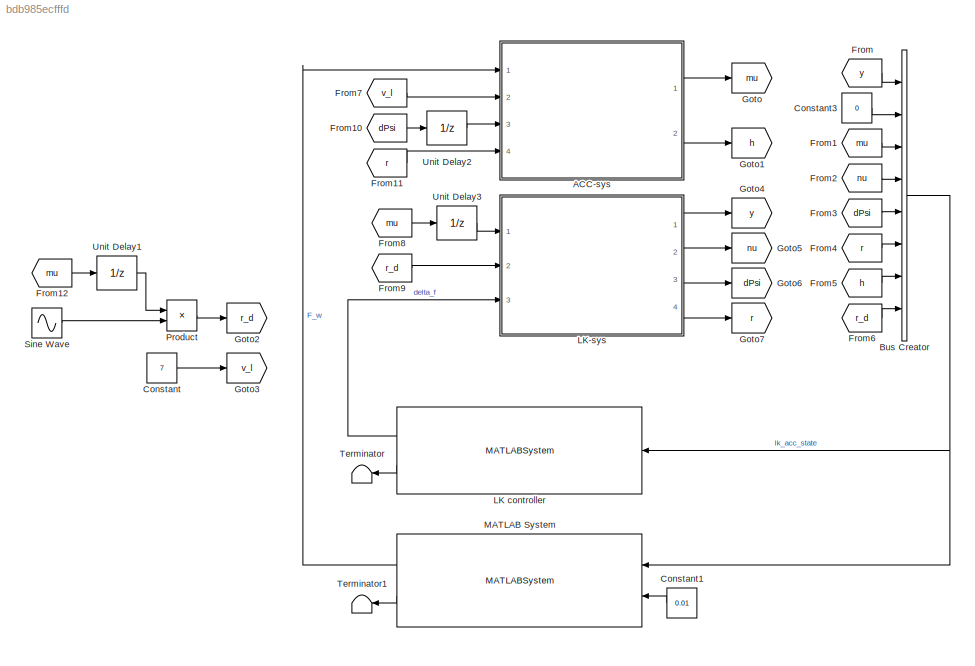
MODEL slx_bdb985ecfffd
KIND model
CONFIG AbsTol = auto
CONFIG EnableMultiTasking = off
CONFIG FixedStep = 0.01
CONFIG MaxStep = auto
CONFIG MinStep = auto
CONFIG PreLoadFcn = bus_definitions
CONFIG RelTol = 1e-3
CONFIG SampleTimeConstraint = Unconstrained
CONFIG Solver = FixedStepAuto
CONFIG SolverName = FixedStepAuto
CONFIG StartTime = 0.0
CONFIG StopTime = 70
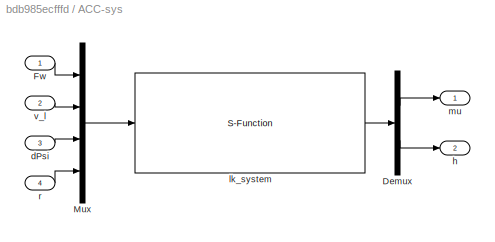
BLOCK [SubSystem] ACC-sys
  Ports = [4, 2]
  RequestExecContextInheritance = off
  Variant = off
BLOCK [Demux] ACC-sys/Demux
  DisplayOption = bar
  Outputs = 2
  Ports = [1, 2]
BLOCK [Inport] ACC-sys/Fw
  IconDisplay = Port number
BLOCK [Mux] ACC-sys/Mux
  DisplayOption = bar
  Ports = [4, 1]
BLOCK [Inport] ACC-sys/dPsi
  IconDisplay = Port number
  Port = 3
BLOCK [Outport] ACC-sys/h
  IconDisplay = Port number
  Port = 2
BLOCK [S-Function] ACC-sys/lk_system
  EnableBusSupport = off
  FunctionName = acc_system
  Parameters = [7;40]
  Ports = [1, 1]
  SFcnIsStateOwnerBlock = off
  SFunctionDeploymentMode = off
BLOCK [Outport] ACC-sys/mu
  IconDisplay = Port number
BLOCK [Inport] ACC-sys/r
  IconDisplay = Port number
  Port = 4
BLOCK [Inport] ACC-sys/v_l
  IconDisplay = Port number
  Port = 2
BLOCK [BusCreator] Bus Creator
  DisplayOption = bar
  InheritFromInputs = off
  Inputs = 8
  OutDataTypeStr = Bus: LKACCBus
  Ports = [8, 1]
BLOCK [Constant] Constant
  Value = 7
BLOCK [Constant] Constant1
  Value = 0.01
BLOCK [Constant] Constant3
  Value = 0
BLOCK [From] From
  GotoTag = y
BLOCK [From] From1
  GotoTag = mu
BLOCK [From] From10
  GotoTag = dPsi
BLOCK [From] From11
  GotoTag = r
BLOCK [From] From12
  GotoTag = mu
BLOCK [From] From2
  GotoTag = nu
BLOCK [From] From3
  GotoTag = dPsi
BLOCK [From] From4
  GotoTag = r
BLOCK [From] From5
  GotoTag = h
BLOCK [From] From6
  GotoTag = r_d
BLOCK [From] From7
  GotoTag = v_l
BLOCK [From] From8
  GotoTag = mu
BLOCK [From] From9
  GotoTag = r_d
BLOCK [Goto] Goto
  GotoTag = mu
BLOCK [Goto] Goto1
  GotoTag = h
BLOCK [Goto] Goto2
  GotoTag = r_d
BLOCK [Goto] Goto3
  GotoTag = v_l
BLOCK [Goto] Goto4
  GotoTag = y
BLOCK [Goto] Goto5
  GotoTag = nu
BLOCK [Goto] Goto6
  GotoTag = dPsi
BLOCK [Goto] Goto7
  GotoTag = r
BLOCK [MATLABSystem] LK controller
  Caf = 140000
  Car = 120000
  H_u = 4
  H_x = diag([1 0 0.25 0])
  Iz = 3270.0
  M = 1800
  MaskDisplay = disp('lk_pcis_controller');\nport_label('input',1,'lk_acc_state');\nport_label('output',1,'delta_f');\nport_label('output',2,'control_info');
  MaskType = lk_pcis_controller
  Ports = [1, 2]
  SimulateUsing = Code generation
  System = lk_pcis_controller
  f_u = 0
  f_x = [0;0;0;0]
  lf = 1.2
  lr = 1.650
  sol_opts = struct( 'DataType', 'double', 'MaxIter', 200, 'FeasibilityTol', 1e-6, 'IntegrityChecks', true )
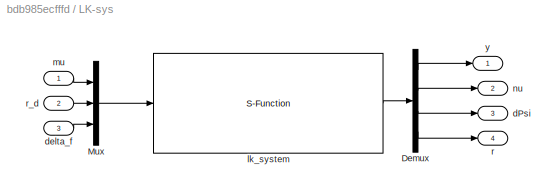
BLOCK [SubSystem] LK-sys
  Ports = [3, 4]
  RequestExecContextInheritance = off
  Variant = off
BLOCK [Demux] LK-sys/Demux
  DisplayOption = bar
  Ports = [1, 4]
BLOCK [Mux] LK-sys/Mux
  DisplayOption = bar
  Inputs = 3
  Ports = [3, 1]
BLOCK [Outport] LK-sys/dPsi
  IconDisplay = Port number
  Port = 3
BLOCK [Inport] LK-sys/delta_f
  IconDisplay = Port number
  Port = 3
BLOCK [S-Function] LK-sys/lk_system
  EnableBusSupport = off
  FunctionName = lk_system
  Parameters = [0;0;0;0]
  Ports = [1, 1]
  SFcnIsStateOwnerBlock = off
  SFunctionDeploymentMode = off
BLOCK [Inport] LK-sys/mu
  IconDisplay = Port number
BLOCK [Outport] LK-sys/nu
  IconDisplay = Port number
  Port = 2
BLOCK [Outport] LK-sys/r
  IconDisplay = Port number
  Port = 4
BLOCK [Inport] LK-sys/r_d
  IconDisplay = Port number
  Port = 2
BLOCK [Outport] LK-sys/y
  IconDisplay = Port number
BLOCK [MATLABSystem] MATLAB System
  K_i = 0
  M = 1800
  M_d = 0
  M_i = 0
  M_p = 1
  MaskDisplay = disp('acc_pcis_controller');\nport_label('input',1,'lk_acc_state');\nport_label('input',2,'dt');\nport_label('output',1,'F_w');\nport_label('output',2,'control_info');
  MaskType = acc_pcis_controller
  Ports = [2, 2]
  SimulateUsing = Code generation
  System = acc_pcis_controller
  f0bar = 74.63
  f1bar = 40.59
  sol_opts = struct( 'DataType', 'double', 'MaxIter', 200, 'FeasibilityTol', 1e-6, 'IntegrityChecks', true )
  v_des = 8
  vl = 7
BLOCK [Product] Product
  InputSameDT = off
  OutDataTypeStr = Inherit: Inherit via internal rule
  Ports = [2, 1]
  RndMeth = Floor
  SaturateOnIntegerOverflow = off
BLOCK [Sin] Sine Wave
  Amplitude = 0.03
  Frequency = pi/10
  Ports = [0, 1]
  SampleTime = 0
BLOCK [Terminator] Terminator
BLOCK [Terminator] Terminator1
BLOCK [UnitDelay] Unit Delay1
  InputProcessing = Elements as channels (sample based)
  SampleTime = -1
BLOCK [UnitDelay] Unit Delay2
  InputProcessing = Elements as channels (sample based)
  SampleTime = -1
BLOCK [UnitDelay] Unit Delay3
  InputProcessing = Elements as channels (sample based)
  SampleTime = -1
LINE ACC-sys/Demux:1 -> ACC-sys/mu:1
LINE ACC-sys/Demux:2 -> ACC-sys/h:1
LINE ACC-sys/Fw:1 -> ACC-sys/Mux:1
LINE ACC-sys/Mux:1 -> ACC-sys/lk_system:1
LINE ACC-sys/dPsi:1 -> ACC-sys/Mux:3
LINE ACC-sys/lk_system:1 -> ACC-sys/Demux:1
LINE ACC-sys/r:1 -> ACC-sys/Mux:4
LINE ACC-sys/v_l:1 -> ACC-sys/Mux:2
LINE ACC-sys:1 -> Goto:1
LINE ACC-sys:2 -> Goto1:1
NET Bus Creator:1 -> LK controller:1, MATLAB System:1
LINE Constant1:1 -> MATLAB System:2
LINE Constant3:1 -> Bus Creator:2
LINE Constant:1 -> Goto3:1
LINE From10:1 -> Unit Delay2:1
LINE From11:1 -> ACC-sys:4
LINE From12:1 -> Unit Delay1:1
LINE From1:1 -> Bus Creator:3
LINE From2:1 -> Bus Creator:4
LINE From3:1 -> Bus Creator:5
LINE From4:1 -> Bus Creator:6
LINE From5:1 -> Bus Creator:7
LINE From6:1 -> Bus Creator:8
LINE From7:1 -> ACC-sys:2
LINE From8:1 -> Unit Delay3:1
LINE From9:1 -> LK-sys:2
LINE From:1 -> Bus Creator:1
LINE LK controller:1 -> LK-sys:3
LINE LK controller:2 -> Terminator:1
LINE LK-sys/Demux:1 -> LK-sys/y:1
LINE LK-sys/Demux:2 -> LK-sys/nu:1
LINE LK-sys/Demux:3 -> LK-sys/dPsi:1
LINE LK-sys/Demux:4 -> LK-sys/r:1
LINE LK-sys/Mux:1 -> LK-sys/lk_system:1
LINE LK-sys/delta_f:1 -> LK-sys/Mux:3
LINE LK-sys/lk_system:1 -> LK-sys/Demux:1
LINE LK-sys/mu:1 -> LK-sys/Mux:1
LINE LK-sys/r_d:1 -> LK-sys/Mux:2
LINE LK-sys:1 -> Goto4:1
LINE LK-sys:2 -> Goto5:1
LINE LK-sys:3 -> Goto6:1
LINE LK-sys:4 -> Goto7:1
LINE MATLAB System:1 -> ACC-sys:1
LINE MATLAB System:2 -> Terminator1:1
LINE Product:1 -> Goto2:1
LINE Sine Wave:1 -> Product:2
LINE Unit Delay1:1 -> Product:1
LINE Unit Delay2:1 -> ACC-sys:3
LINE Unit Delay3:1 -> LK-sys:1
note: NET lines group one-source signal fan-out (src -> all destinations, sorted); 1:1 wires keep LINE
